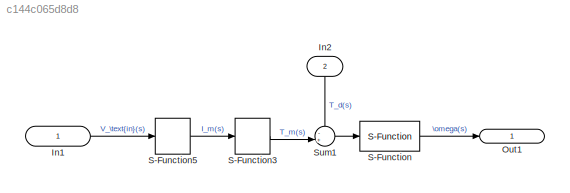
MODEL slx_c144c065d8d8
KIND model
CONFIG AbsTol = auto
CONFIG EnableMultiTasking = off
CONFIG FixedStep = auto
CONFIG MaxStep = auto
CONFIG MinStep = auto
CONFIG RelTol = 1e-3
CONFIG SampleTimeConstraint = Unconstrained
CONFIG Solver = VariableStepAuto
CONFIG SolverName = VariableStepAuto
CONFIG StartTime = 0.0
CONFIG StopTime = 10.0
WORKSPACE source: mxarray member
WORKSPACE K_b = 1
BLOCK [Inport] In1
  IconDisplay = Signal name
BLOCK [Inport] In2
  IconDisplay = Signal name
  Port = 2
BLOCK [Outport] Out1
  IconDisplay = Signal name
BLOCK [S-Function] S-Function
  EnableBusSupport = off
  FunctionName = M(s)
  Ports = [1, 1]
  SFcnIsStateOwnerBlock = off
  SFunctionDeploymentMode = off
BLOCK [S-Function] S-Function3
  EnableBusSupport = off
  FunctionName = K_t
  Ports = [1, 1]
  SFcnIsStateOwnerBlock = off
  SFunctionDeploymentMode = off
BLOCK [S-Function] S-Function5
  EnableBusSupport = off
  FunctionName = S_g
  Ports = [1, 1]
  SFcnIsStateOwnerBlock = off
  SFunctionDeploymentMode = off
BLOCK [Sum] Sum1
  IconShape = round
  InputSameDT = off
  Inputs = -+|
  OutDataTypeStr = Inherit: Inherit via internal rule
  Ports = [2, 1]
  SaturateOnIntegerOverflow = off
LINE In1:1 -> S-Function5:1
LINE In2:1 -> Sum1:1
LINE S-Function3:1 -> Sum1:2
LINE S-Function5:1 -> S-Function3:1
LINE S-Function:1 -> Out1:1
LINE Sum1:1 -> S-Function:1
